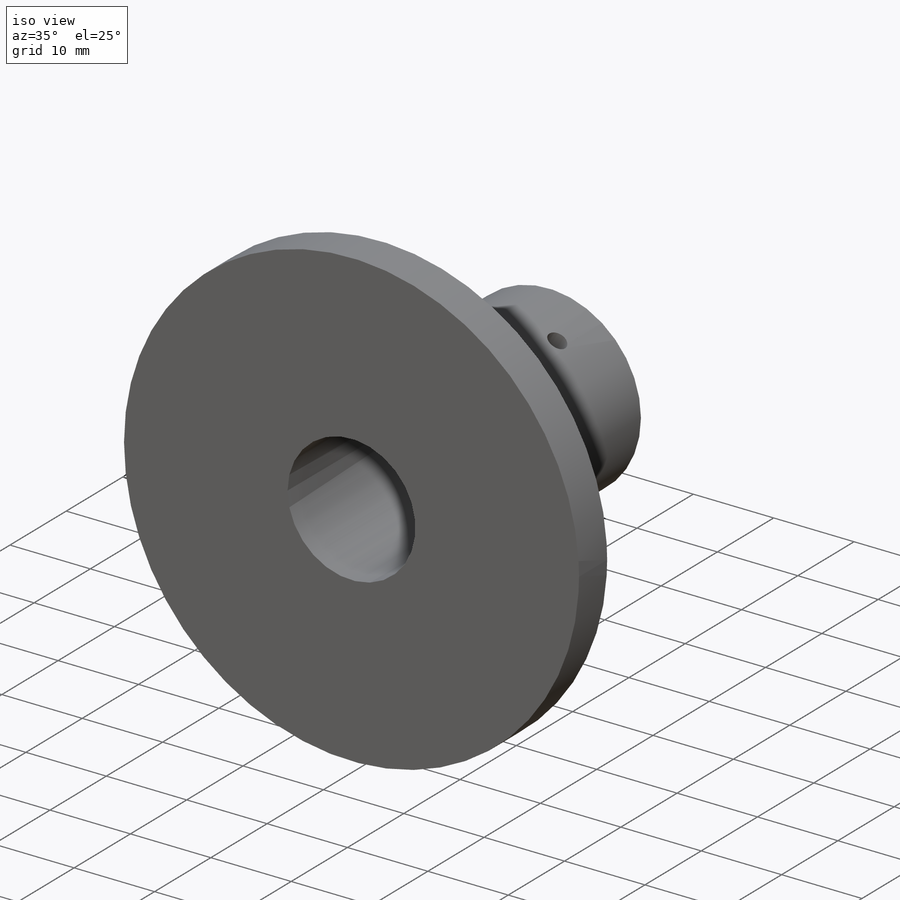
[diagram: iso view]
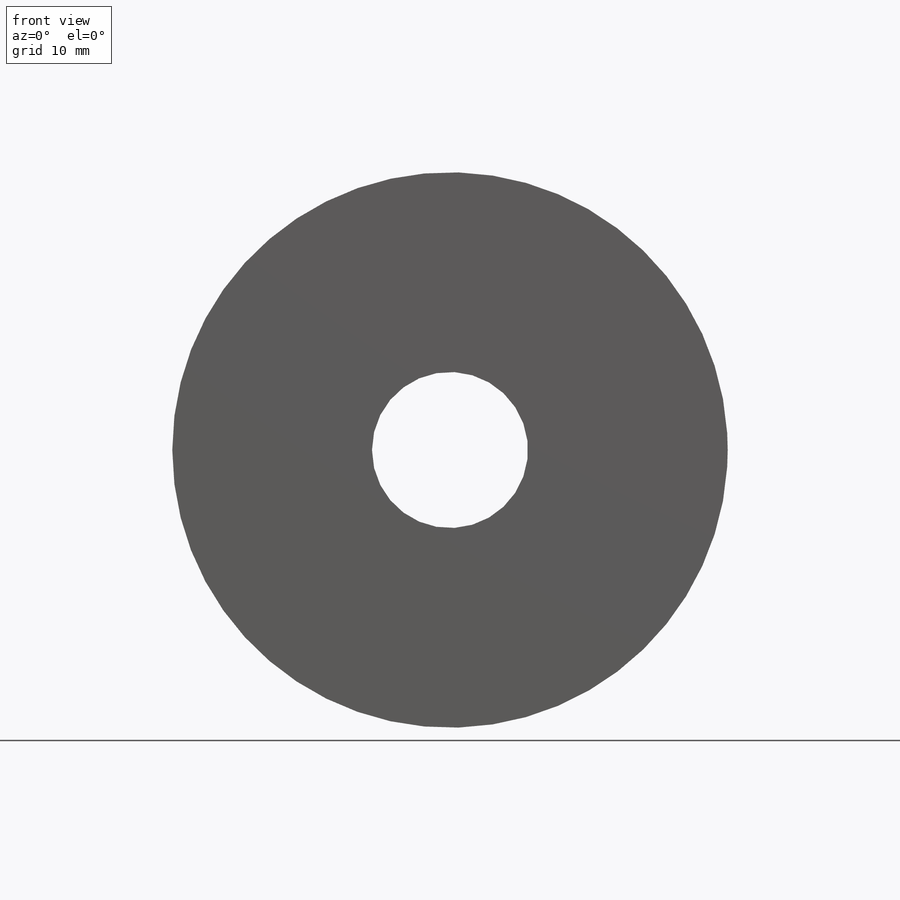
[diagram: front view]
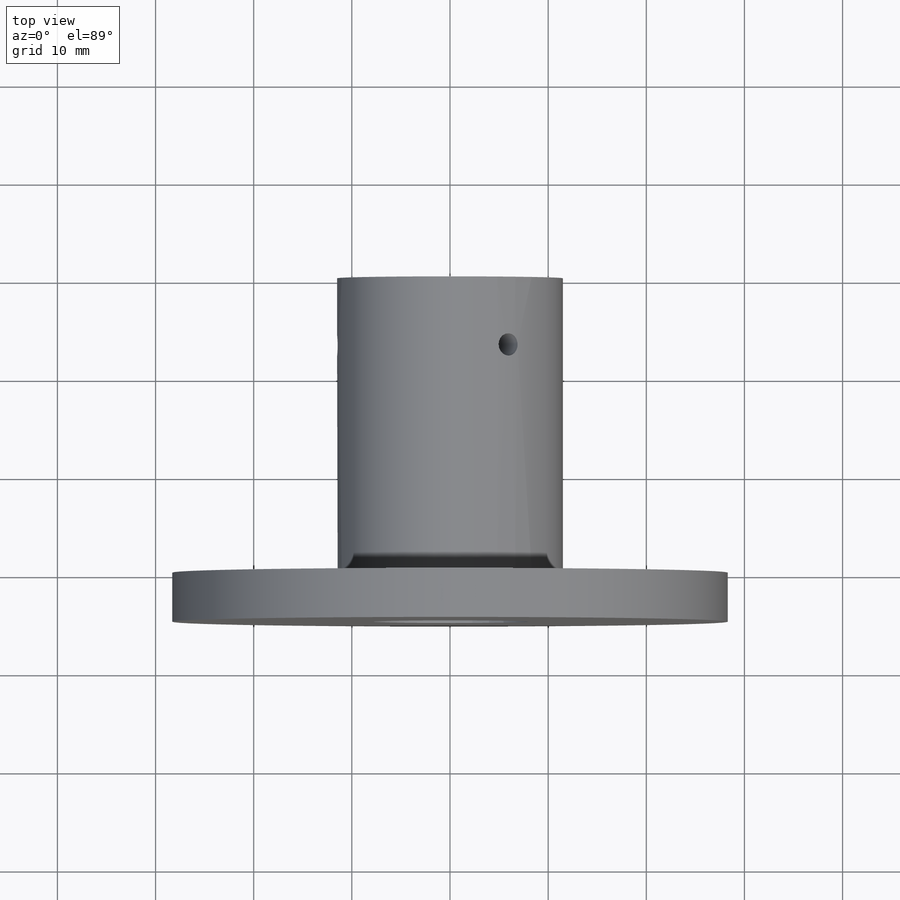
[diagram: top view]
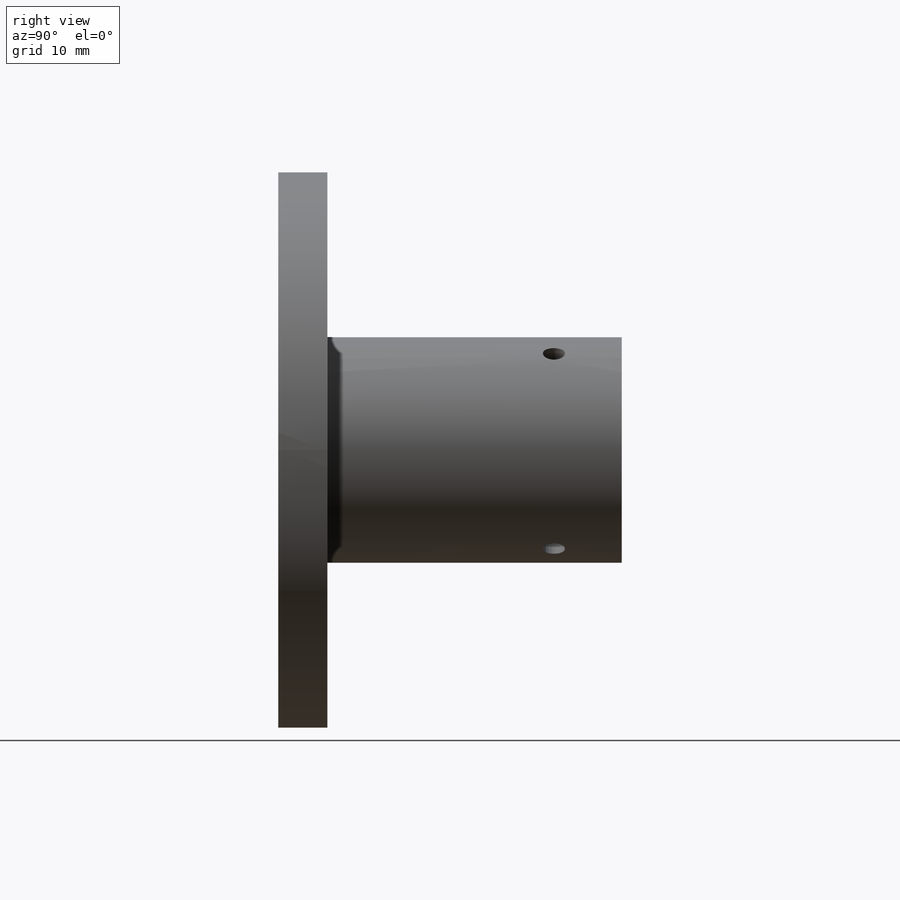
[diagram: right view]
SOLIDWORKS PART (.sldprt)
format: sldprt  version: not decoded by parser v0  size: 197,632 bytes
history: native  units: mm
features: sketch x5, extrude x2, material x1, cut_extrude x1, hole x1, pattern_circular x1 (+16 scaffold rows collapsed)
feature tree (27):
  scaffold x16  (default folders/planes/origin — collapsed)
  material  "Material <not specified>"
  sketch  "Sketch1"  dims[D1=56.6mm]
  extrude  "Boss-Extrude1"  Depth=5mm
  sketch  "Sketch4"  dims[D1=23.0mm]
  extrude  "Boss-Extrude2"  Depth=30mm
  sketch  "Sketch10"  dims[D1=15.9mm]
  cut_extrude  "Cut-Extrude4"  [1 undecoded]
  hole  "#4-40 Tapped Hole2"  Diameter=2.2606mm Depth=23mm
  sketch  "3DSketch2"
  sketch  "Sketch11"  dims[hole-wizard template sketch: 60 standard entries collapsed; hole parameters kept: c18.Thru Tap Drill Depth=23.0mm]
  pattern_circular  "CirPattern3"  Count=3 Angle=120deg
decode coverage: 8 of 10 modeling features carry decoded parameters
note: ~ marks probable driven/reference dimensions
note: 1 parameter value undecoded
note: suppression state not decoded; provenance and decode notes live in map.json
